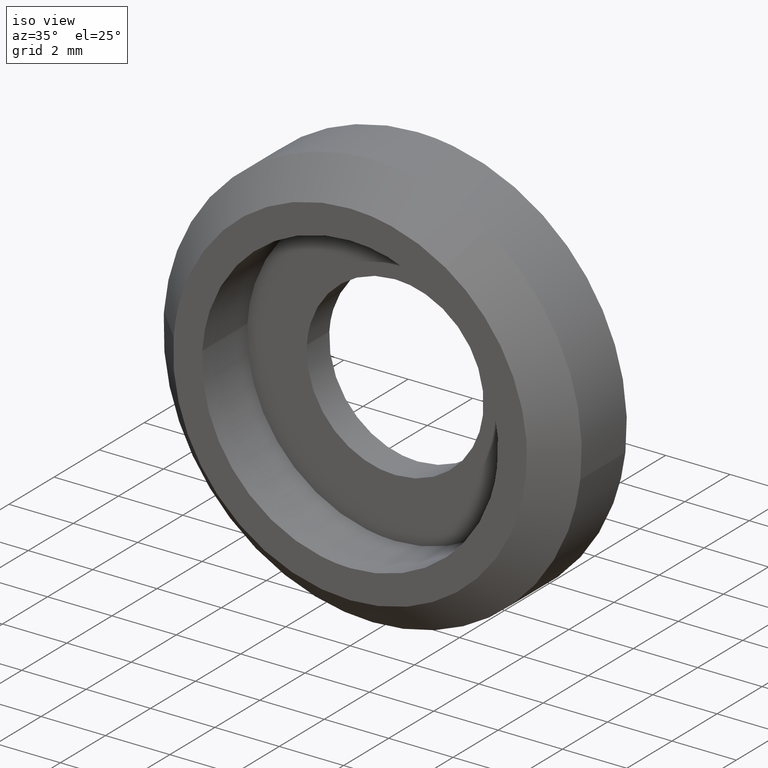
[diagram: clean part render]
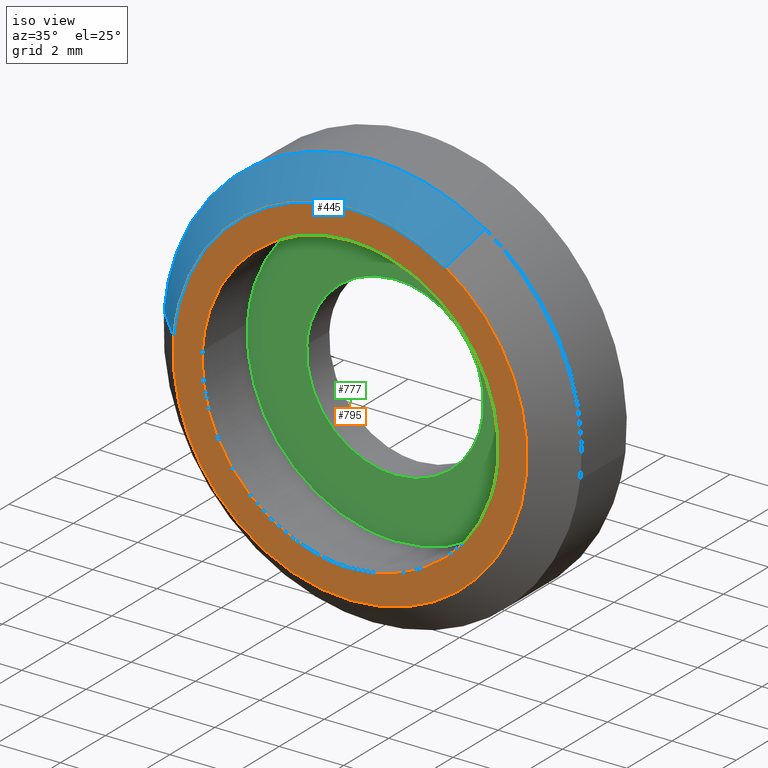
[diagram: same view with three faces highlighted in distinct colors, each labeled with its STEP entity id]
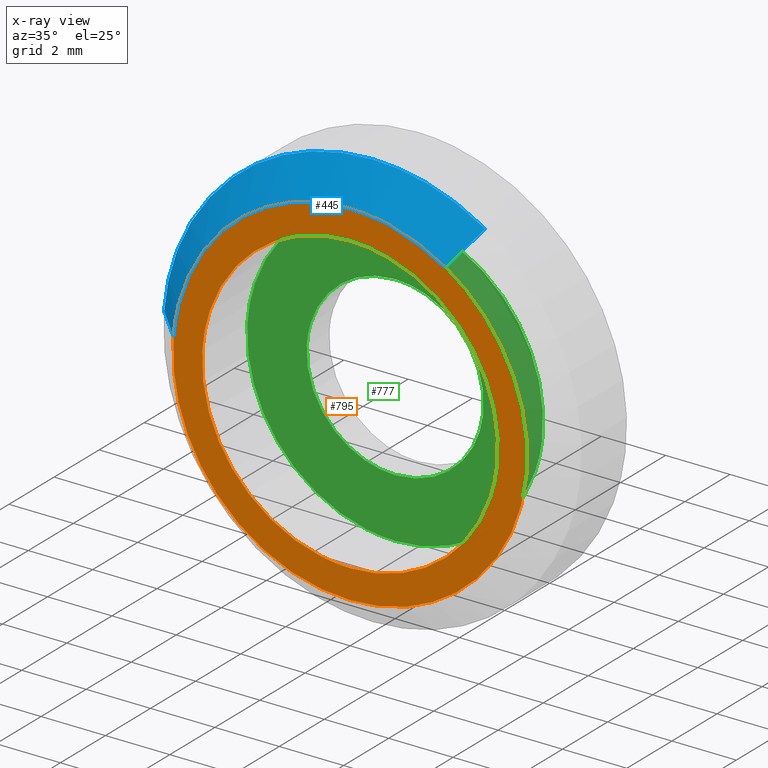
[diagram: x-ray of the same camera — body ghosted, the three highlighted faces saturated]
A machine part, iso view with three faces highlighted in distinct colors.
The next image is the same camera in x-ray (body ghosted, the three faces saturated) — at least one of them is partly hidden behind the body in this view.
Their STEP definitions:

[orange] entity #795 — the highlighted face is a freeform B-spline surface patch.
#85=CARTESIAN_POINT('',(4.567843923526642,-2.0,-0.542956619169509));
#86=VERTEX_POINT('',#85);
#92=CARTESIAN_POINT('',(4.898425E-016,-2.0,4.600000000000000));
#93=VERTEX_POINT('',#92);
#94=CARTESIAN_POINT('',(4.567843923526642,-2.000000000000000,-0.542956619169509));
#95=CARTESIAN_POINT('',(4.600000000000000,-2.000000000000000,-0.272430081052766));
#96=CARTESIAN_POINT('',(4.600000000000001,-2.0,0.0));
#97=CARTESIAN_POINT('',(4.600000000000001,-2.0,4.600000000000000));
#98=CARTESIAN_POINT('',(4.898425E-016,-2.0,4.600000000000000));
#106=(BOUNDED_CURVE()B_SPLINE_CURVE(2,(#94,#95,#96,#97,#98),.UNSPECIFIED.,.F.,.U.)B_SPLINE_CURVE_WITH_KNOTS((3,2,3),(0.229562537171638,0.250000000000000,0.500000000000000),.UNSPECIFIED.)CURVE()GEOMETRIC_REPRESENTATION_ITEM()RATIONAL_B_SPLINE_CURVE((0.956026878956277,0.976056022911283,1.0,0.707106781186547,1.0))REPRESENTATION_ITEM(''));
#107=EDGE_CURVE('',#86,#93,#106,.T.);
#109=CARTESIAN_POINT('',(-4.591420351980636,-2.0,0.280818716251385));
#110=VERTEX_POINT('',#109);
#111=CARTESIAN_POINT('',(4.898425E-016,-2.0,4.600000000000000));
#112=CARTESIAN_POINT('',(-4.327252218730626,-2.0,4.600000000000000));
#113=CARTESIAN_POINT('',(-4.591420351980636,-2.000000000000000,0.280818716251385));
#121=(BOUNDED_CURVE()B_SPLINE_CURVE(2,(#111,#112,#113),.UNSPECIFIED.,.F.,.U.)B_SPLINE_CURVE_WITH_KNOTS((3,3),(0.500000000000000,0.739333133818792),.UNSPECIFIED.)CURVE()GEOMETRIC_REPRESENTATION_ITEM()RATIONAL_B_SPLINE_CURVE((1.0,0.719603792268414,0.976072409395271))REPRESENTATION_ITEM(''));
#122=EDGE_CURVE('',#93,#110,#121,.T.);
#196=CARTESIAN_POINT('',(4.898425E-016,-2.0,-4.600000000000000));
#197=VERTEX_POINT('',#196);
#198=CARTESIAN_POINT('',(-4.591420351980636,-2.000000000000000,0.280818716251385));
#199=CARTESIAN_POINT('',(-4.599999999999999,-2.000000000000000,0.140540421968442));
#200=CARTESIAN_POINT('',(-4.599999999999999,-2.0,0.0));
#201=CARTESIAN_POINT('',(-4.600000000000000,-2.0,-4.600000000000000));
#202=CARTESIAN_POINT('',(4.898425E-016,-2.0,-4.600000000000000));
#210=(BOUNDED_CURVE()B_SPLINE_CURVE(2,(#198,#199,#200,#201,#202),.UNSPECIFIED.,.F.,.U.)B_SPLINE_CURVE_WITH_KNOTS((3,2,3),(0.739333133818792,0.750000000000000,1.0),.UNSPECIFIED.)CURVE()GEOMETRIC_REPRESENTATION_ITEM()RATIONAL_B_SPLINE_CURVE((0.976072409395271,0.987502988918134,1.0,0.707106781186547,1.0))REPRESENTATION_ITEM(''));
#211=EDGE_CURVE('',#110,#197,#210,.T.);
#213=CARTESIAN_POINT('',(4.898425E-016,-2.0,-4.600000000000000));
#214=CARTESIAN_POINT('',(4.085604369074106,-1.999999999999999,-4.600000000000000));
#215=CARTESIAN_POINT('',(4.567843923526642,-2.000000000000000,-0.542956619169509));
#223=(BOUNDED_CURVE()B_SPLINE_CURVE(2,(#213,#214,#215),.UNSPECIFIED.,.F.,.U.)B_SPLINE_CURVE_WITH_KNOTS((3,3),(0.0,0.229562537171638),.UNSPECIFIED.)CURVE()GEOMETRIC_REPRESENTATION_ITEM()RATIONAL_B_SPLINE_CURVE((1.0,0.731050758275264,0.956026878956277))REPRESENTATION_ITEM(''));
#224=EDGE_CURVE('',#197,#86,#223,.T.);
#271=CARTESIAN_POINT('',(2.958179363957607,-1.999999999999788,4.636720268752224));
#272=VERTEX_POINT('',#271);
#278=CARTESIAN_POINT('',(4.898425E-016,-2.0,-5.500000000000000));
#279=VERTEX_POINT('',#278);
#280=CARTESIAN_POINT('',(4.898425E-016,-2.0,-5.500000000000000));
#281=CARTESIAN_POINT('',(5.500000000000001,-2.000000000000000,-5.500000000000001));
#282=CARTESIAN_POINT('',(5.500000000000001,-2.0,0.0));
#283=CARTESIAN_POINT('',(5.500000000000000,-2.000000000000000,3.015065108075712));
#284=CARTESIAN_POINT('',(2.958179363957608,-1.999999999999788,4.636720268752226));
#292=(BOUNDED_CURVE()B_SPLINE_CURVE(2,(#280,#281,#282,#283,#284),.UNSPECIFIED.,.F.,.U.)B_SPLINE_CURVE_WITH_KNOTS((3,2,3),(0.0,0.250000000000000,0.407950112627348),.UNSPECIFIED.)CURVE()GEOMETRIC_REPRESENTATION_ITEM()RATIONAL_B_SPLINE_CURVE((1.0,0.707106781186548,1.0,0.814949932402515,0.863729296954799))REPRESENTATION_ITEM(''));
#293=EDGE_CURVE('',#279,#272,#292,.T.);
#295=CARTESIAN_POINT('',(-5.483045335532477,-1.999999999999305,0.431525026508502));
#296=VERTEX_POINT('',#295);
#297=CARTESIAN_POINT('',(-5.483045335532477,-1.999999999999305,0.431525026508502));
#298=CARTESIAN_POINT('',(-5.499999999999999,-2.000000000000000,0.216095588547506));
#299=CARTESIAN_POINT('',(-5.499999999999999,-2.0,0.0));
#300=CARTESIAN_POINT('',(-5.499999999999999,-2.000000000000000,-5.500000000000001));
#301=CARTESIAN_POINT('',(4.898425E-016,-2.0,-5.500000000000000));
#309=(BOUNDED_CURVE()B_SPLINE_CURVE(2,(#297,#298,#299,#300,#301),.UNSPECIFIED.,.F.,.U.)B_SPLINE_CURVE_WITH_KNOTS((3,2,3),(0.736331300632436,0.750000000000000,1.0),.UNSPECIFIED.)CURVE()GEOMETRIC_REPRESENTATION_ITEM()RATIONAL_B_SPLINE_CURVE((0.969723356171124,0.983986122580963,1.0,0.707106781186548,1.0))REPRESENTATION_ITEM(''));
#310=EDGE_CURVE('',#296,#279,#309,.T.);
#414=CARTESIAN_POINT('',(4.898425E-016,-2.0,5.500000000000000));
#415=VERTEX_POINT('',#414);
#416=CARTESIAN_POINT('',(4.898425E-016,-2.0,5.500000000000000));
#417=CARTESIAN_POINT('',(-5.084147704110269,-2.000000000000000,5.499999999999999));
#418=CARTESIAN_POINT('',(-5.483045335532477,-1.999999999999304,0.431525026508502));
#426=(BOUNDED_CURVE()B_SPLINE_CURVE(2,(#416,#417,#418),.UNSPECIFIED.,.F.,.U.)B_SPLINE_CURVE_WITH_KNOTS((3,3),(0.500000000000000,0.736331300632435),.UNSPECIFIED.)CURVE()GEOMETRIC_REPRESENTATION_ITEM()RATIONAL_B_SPLINE_CURVE((1.0,0.723120658605585,0.969723356171123))REPRESENTATION_ITEM(''));
#427=EDGE_CURVE('',#415,#296,#426,.T.);
#429=CARTESIAN_POINT('',(2.958179363957608,-1.999999999999788,4.636720268752226));
#430=CARTESIAN_POINT('',(1.605054304590299,-2.0,5.500000000000001));
#431=CARTESIAN_POINT('',(4.898425E-016,-2.0,5.500000000000000));
#439=(BOUNDED_CURVE()B_SPLINE_CURVE(2,(#429,#430,#431),.UNSPECIFIED.,.F.,.U.)B_SPLINE_CURVE_WITH_KNOTS((3,3),(0.407950112627348,0.500000000000000),.UNSPECIFIED.)CURVE()GEOMETRIC_REPRESENTATION_ITEM()RATIONAL_B_SPLINE_CURVE((0.863729296954799,0.892156848784032,1.0))REPRESENTATION_ITEM(''));
#440=EDGE_CURVE('',#272,#415,#439,.T.);
#778=CARTESIAN_POINT('',(-6.047750389742101,-2.0,-6.049449978679865));
#779=CARTESIAN_POINT('',(-6.047750389742101,-2.0,6.049450273722857));
#780=CARTESIAN_POINT('',(6.047335264252870,-2.0,-6.049449978679865));
#781=CARTESIAN_POINT('',(6.047335264252870,-2.0,6.049450273722857));
#782=B_SPLINE_SURFACE_WITH_KNOTS('',1,1,((#778,#780),(#779,#781)),.UNSPECIFIED.,.F.,.F.,.U.,(2,2),(2,2),(0.0,12.098900252402720),(0.0,12.095085653994969),.UNSPECIFIED.);
#783=ORIENTED_EDGE('',*,*,#293,.T.);
#784=ORIENTED_EDGE('',*,*,#440,.T.);
#785=ORIENTED_EDGE('',*,*,#427,.T.);
#786=ORIENTED_EDGE('',*,*,#310,.T.);
#787=EDGE_LOOP('',(#783,#784,#785,#786));
#788=FACE_OUTER_BOUND('',#787,.T.);
#789=ORIENTED_EDGE('',*,*,#122,.F.);
#790=ORIENTED_EDGE('',*,*,#107,.F.);
#791=ORIENTED_EDGE('',*,*,#224,.F.);
#792=ORIENTED_EDGE('',*,*,#211,.F.);
#793=EDGE_LOOP('',(#789,#790,#791,#792));
#794=FACE_BOUND('',#793,.T.);
#795=ADVANCED_FACE('',(#788,#794),#782,.F.);

[blue] entity #445 — the highlighted face is a freeform B-spline surface patch.
#254=CARTESIAN_POINT('',(3.496030157401222,-0.999999999999946,5.479760317618087));
#255=VERTEX_POINT('',#254);
#271=CARTESIAN_POINT('',(2.958179363957607,-1.999999999999788,4.636720268752224));
#272=VERTEX_POINT('',#271);
#273=CARTESIAN_POINT('',(2.958179363957607,-1.999999999999788,4.636720268752224));
#274=CARTESIAN_POINT('',(3.496030157401222,-0.999999999999946,5.479760317618087));
#275=QUASI_UNIFORM_CURVE('',1,(#273,#274),.UNSPECIFIED.,.F.,.U.);
#276=EDGE_CURVE('',#272,#255,#275,.T.);
#295=CARTESIAN_POINT('',(-5.483045335532477,-1.999999999999305,0.431525026508502));
#296=VERTEX_POINT('',#295);
#312=CARTESIAN_POINT('',(-6.479962669265479,-0.999999999999622,0.509984122233905));
#313=VERTEX_POINT('',#312);
#314=CARTESIAN_POINT('',(-5.483045335532477,-1.999999999999305,0.431525026508502));
#315=CARTESIAN_POINT('',(-6.479962669265479,-0.999999999999622,0.509984122233905));
#316=QUASI_UNIFORM_CURVE('',1,(#314,#315),.UNSPECIFIED.,.F.,.U.);
#317=EDGE_CURVE('',#296,#313,#316,.T.);
#367=CARTESIAN_POINT('',(-5.458122402188872,-2.025000000000000,0.429563549109954));
#368=CARTESIAN_POINT('',(-5.028558853078918,-2.025000000000000,5.887685951298828));
#369=CARTESIAN_POINT('',(0.429563549109955,-2.025000000000000,5.458122402188873));
#370=CARTESIAN_POINT('',(1.792321263180675,-2.024999999999999,5.350871044103091));
#371=CARTESIAN_POINT('',(2.944733094117965,-2.025000000000000,4.615644267532583));
#372=CARTESIAN_POINT('',(-6.505508675942239,-0.974375000000000,0.511994636559022));
#373=CARTESIAN_POINT('',(-5.993514039383216,-0.974375000000000,7.017503312501262));
#374=CARTESIAN_POINT('',(0.511994636559022,-0.974375000000000,6.505508675942240));
#375=CARTESIAN_POINT('',(2.136258711058153,-0.974375000000000,6.377676320945247));
#376=CARTESIAN_POINT('',(3.509812583982383,-0.974375000000000,5.501363218870742));
#384=(BOUNDED_SURFACE()B_SPLINE_SURFACE(2,1,((#367,#372),(#368,#373),(#369,#374),(#370,#375),(#371,#376)),.UNSPECIFIED.,.F.,.F.,.U.)B_SPLINE_SURFACE_WITH_KNOTS((3,2,3),(2,2),(0.0,10.812009511843710,14.271852555633700),(0.0,1.0),.UNSPECIFIED.)GEOMETRIC_REPRESENTATION_ITEM()RATIONAL_B_SPLINE_SURFACE(((1.0,1.0),(0.707106781186548,0.707106781186548),(1.0,1.0),(0.906274169979695,0.906274169979695),(0.872532871172386,0.872532871172386)))REPRESENTATION_ITEM('')SURFACE());
#385=CARTESIAN_POINT('',(4.898425E-016,-1.0,6.500000000000000));
#386=VERTEX_POINT('',#385);
#387=CARTESIAN_POINT('',(3.496030157401223,-0.999999999999946,5.479760317618088));
#388=CARTESIAN_POINT('',(1.896882359966342,-1.0,6.500000000000000));
#389=CARTESIAN_POINT('',(4.898425E-016,-1.0,6.500000000000000));
#397=(BOUNDED_CURVE()B_SPLINE_CURVE(2,(#387,#388,#389),.UNSPECIFIED.,.F.,.U.)B_SPLINE_CURVE_WITH_KNOTS((3,3),(0.407950112627522,0.500000000000000),.UNSPECIFIED.)CURVE()GEOMETRIC_REPRESENTATION_ITEM()RATIONAL_B_SPLINE_CURVE((0.863729296954906,0.892156848784236,1.0))REPRESENTATION_ITEM(''));
#398=EDGE_CURVE('',#255,#386,#397,.T.);
#399=ORIENTED_EDGE('',*,*,#398,.T.);
#400=CARTESIAN_POINT('',(4.898425E-016,-1.0,6.500000000000000));
#401=CARTESIAN_POINT('',(-6.008538195773006,-1.0,6.500000000000000));
#402=CARTESIAN_POINT('',(-6.479962669265479,-0.999999999999622,0.509984122233905));
#410=(BOUNDED_CURVE()B_SPLINE_CURVE(2,(#400,#401,#402),.UNSPECIFIED.,.F.,.U.)B_SPLINE_CURVE_WITH_KNOTS((3,3),(0.500000000000000,0.736331300632615),.UNSPECIFIED.)CURVE()GEOMETRIC_REPRESENTATION_ITEM()RATIONAL_B_SPLINE_CURVE((1.0,0.723120658605375,0.969723356171499))REPRESENTATION_ITEM(''));
#411=EDGE_CURVE('',#386,#313,#410,.T.);
#412=ORIENTED_EDGE('',*,*,#411,.T.);
#413=ORIENTED_EDGE('',*,*,#317,.F.);
#414=CARTESIAN_POINT('',(4.898425E-016,-2.0,5.500000000000000));
#415=VERTEX_POINT('',#414);
#416=CARTESIAN_POINT('',(4.898425E-016,-2.0,5.500000000000000));
#417=CARTESIAN_POINT('',(-5.084147704110269,-2.000000000000000,5.499999999999999));
#418=CARTESIAN_POINT('',(-5.483045335532477,-1.999999999999304,0.431525026508502));
#426=(BOUNDED_CURVE()B_SPLINE_CURVE(2,(#416,#417,#418),.UNSPECIFIED.,.F.,.U.)B_SPLINE_CURVE_WITH_KNOTS((3,3),(0.500000000000000,0.736331300632435),.UNSPECIFIED.)CURVE()GEOMETRIC_REPRESENTATION_ITEM()RATIONAL_B_SPLINE_CURVE((1.0,0.723120658605585,0.969723356171123))REPRESENTATION_ITEM(''));
#427=EDGE_CURVE('',#415,#296,#426,.T.);
#428=ORIENTED_EDGE('',*,*,#427,.F.);
#429=CARTESIAN_POINT('',(2.958179363957608,-1.999999999999788,4.636720268752226));
#430=CARTESIAN_POINT('',(1.605054304590299,-2.0,5.500000000000001));
#431=CARTESIAN_POINT('',(4.898425E-016,-2.0,5.500000000000000));
#439=(BOUNDED_CURVE()B_SPLINE_CURVE(2,(#429,#430,#431),.UNSPECIFIED.,.F.,.U.)B_SPLINE_CURVE_WITH_KNOTS((3,3),(0.407950112627348,0.500000000000000),.UNSPECIFIED.)CURVE()GEOMETRIC_REPRESENTATION_ITEM()RATIONAL_B_SPLINE_CURVE((0.863729296954799,0.892156848784032,1.0))REPRESENTATION_ITEM(''));
#440=EDGE_CURVE('',#272,#415,#439,.T.);
#441=ORIENTED_EDGE('',*,*,#440,.F.);
#442=ORIENTED_EDGE('',*,*,#276,.T.);
#443=EDGE_LOOP('',(#399,#412,#413,#428,#441,#442));
#444=FACE_OUTER_BOUND('',#443,.T.);
#445=ADVANCED_FACE('',(#444),#384,.T.);

[green] entity #777 — the highlighted face is a freeform B-spline surface patch.
#66=CARTESIAN_POINT('',(4.567843924772339,-3.194357E-015,-0.542956608689565));
#67=VERTEX_POINT('',#66);
#68=CARTESIAN_POINT('',(4.898425E-016,0.0,4.600000000000000));
#69=VERTEX_POINT('',#68);
#70=CARTESIAN_POINT('',(4.567843924772339,-3.194357E-015,-0.542956608689565));
#71=CARTESIAN_POINT('',(4.600000000000001,0.0,-0.272430070462030));
#72=CARTESIAN_POINT('',(4.600000000000001,0.0,0.0));
#73=CARTESIAN_POINT('',(4.600000000000001,0.0,4.600000000000000));
#74=CARTESIAN_POINT('',(4.898425E-016,0.0,4.600000000000000));
#82=(BOUNDED_CURVE()B_SPLINE_CURVE(2,(#70,#71,#72,#73,#74),.UNSPECIFIED.,.F.,.U.)B_SPLINE_CURVE_WITH_KNOTS((3,2,3),(0.229562537947122,0.250000000000000,0.500000000000000),.UNSPECIFIED.)CURVE()GEOMETRIC_REPRESENTATION_ITEM()RATIONAL_B_SPLINE_CURVE((0.956026880476258,0.976056023819819,1.0,0.707106781186547,1.0))REPRESENTATION_ITEM(''));
#83=EDGE_CURVE('',#67,#69,#82,.T.);
#124=CARTESIAN_POINT('',(-4.591420355385287,-1.392636E-014,0.280818660584011));
#125=VERTEX_POINT('',#124);
#131=CARTESIAN_POINT('',(4.898425E-016,0.0,4.600000000000000));
#132=CARTESIAN_POINT('',(-4.327252271293201,0.0,4.599999999999999));
#133=CARTESIAN_POINT('',(-4.591420355385287,-1.392636E-014,0.280818660584011));
#141=(BOUNDED_CURVE()B_SPLINE_CURVE(2,(#131,#132,#133),.UNSPECIFIED.,.F.,.U.)B_SPLINE_CURVE_WITH_KNOTS((3,3),(0.500000000000000,0.739333135910787),.UNSPECIFIED.)CURVE()GEOMETRIC_REPRESENTATION_ITEM()RATIONAL_B_SPLINE_CURVE((1.0,0.719603789817489,0.976072413878821))REPRESENTATION_ITEM(''));
#142=EDGE_CURVE('',#69,#125,#141,.T.);
#165=CARTESIAN_POINT('',(4.898425E-016,0.0,-4.600000000000000));
#166=VERTEX_POINT('',#165);
#167=CARTESIAN_POINT('',(4.898425E-016,0.0,-4.600000000000000));
#168=CARTESIAN_POINT('',(4.085604387953177,0.0,-4.599999999999999));
#169=CARTESIAN_POINT('',(4.567843924772339,-3.194357E-015,-0.542956608689565));
#177=(BOUNDED_CURVE()B_SPLINE_CURVE(2,(#167,#168,#169),.UNSPECIFIED.,.F.,.U.)B_SPLINE_CURVE_WITH_KNOTS((3,3),(0.0,0.229562537947122),.UNSPECIFIED.)CURVE()GEOMETRIC_REPRESENTATION_ITEM()RATIONAL_B_SPLINE_CURVE((1.0,0.731050757366728,0.956026880476258))REPRESENTATION_ITEM(''));
#178=EDGE_CURVE('',#166,#67,#177,.T.);
#180=CARTESIAN_POINT('',(-4.591420355385287,-1.392636E-014,0.280818660584011));
#181=CARTESIAN_POINT('',(-4.599999999999999,0.0,0.140540394056717));
#182=CARTESIAN_POINT('',(-4.599999999999999,0.0,0.0));
#183=CARTESIAN_POINT('',(-4.600000000000000,0.0,-4.600000000000000));
#184=CARTESIAN_POINT('',(4.898425E-016,0.0,-4.600000000000000));
#192=(BOUNDED_CURVE()B_SPLINE_CURVE(2,(#180,#181,#182,#183,#184),.UNSPECIFIED.,.F.,.U.)B_SPLINE_CURVE_WITH_KNOTS((3,2,3),(0.739333135910787,0.750000000000000,1.0),.UNSPECIFIED.)CURVE()GEOMETRIC_REPRESENTATION_ITEM()RATIONAL_B_SPLINE_CURVE((0.976072413878821,0.987502991369059,1.0,0.707106781186547,1.0))REPRESENTATION_ITEM(''));
#193=EDGE_CURVE('',#125,#166,#192,.T.);
#596=CARTESIAN_POINT('',(2.730776319682042,-1.124946E-014,-0.324593117398889));
#597=VERTEX_POINT('',#596);
#598=CARTESIAN_POINT('',(4.898425E-016,0.0,2.750000000000000));
#599=VERTEX_POINT('',#598);
#600=CARTESIAN_POINT('',(2.730776319682042,-1.124946E-014,-0.324593117398889));
#601=CARTESIAN_POINT('',(2.750000000000000,0.0,-0.162865809655731));
#602=CARTESIAN_POINT('',(2.750000000000000,0.0,0.0));
#603=CARTESIAN_POINT('',(2.750000000000000,0.0,2.750000000000000));
#604=CARTESIAN_POINT('',(4.898425E-016,0.0,2.750000000000000));
#612=(BOUNDED_CURVE()B_SPLINE_CURVE(2,(#600,#601,#602,#603,#604),.UNSPECIFIED.,.F.,.U.)B_SPLINE_CURVE_WITH_KNOTS((3,2,3),(0.229562537131132,0.250000000000000,0.500000000000000),.UNSPECIFIED.)CURVE()GEOMETRIC_REPRESENTATION_ITEM()RATIONAL_B_SPLINE_CURVE((0.956026878876884,0.976056022863828,1.0,0.707106781186548,1.0))REPRESENTATION_ITEM(''));
#613=EDGE_CURVE('',#597,#599,#612,.T.);
#615=CARTESIAN_POINT('',(-2.744870927625979,6.940802E-014,0.167879691026804));
#616=VERTEX_POINT('',#615);
#617=CARTESIAN_POINT('',(4.898425E-016,0.0,2.750000000000000));
#618=CARTESIAN_POINT('',(-2.586945265149691,0.0,2.750000000000001));
#619=CARTESIAN_POINT('',(-2.744870927625979,6.940802E-014,0.167879691026804));
#627=(BOUNDED_CURVE()B_SPLINE_CURVE(2,(#617,#618,#619),.UNSPECIFIED.,.F.,.U.)B_SPLINE_CURVE_WITH_KNOTS((3,3),(0.500000000000000,0.739333200656587),.UNSPECIFIED.)CURVE()GEOMETRIC_REPRESENTATION_ITEM()RATIONAL_B_SPLINE_CURVE((1.0,0.719603713963066,0.976072552641646))REPRESENTATION_ITEM(''));
#628=EDGE_CURVE('',#599,#616,#627,.T.);
#695=CARTESIAN_POINT('',(4.898425E-016,0.0,-2.750000000000000));
#696=VERTEX_POINT('',#695);
#697=CARTESIAN_POINT('',(4.898425E-016,0.0,-2.750000000000000));
#698=CARTESIAN_POINT('',(2.442480872226521,0.0,-2.749999999999999));
#699=CARTESIAN_POINT('',(2.730776319682042,-1.124946E-014,-0.324593117398889));
#707=(BOUNDED_CURVE()B_SPLINE_CURVE(2,(#697,#698,#699),.UNSPECIFIED.,.F.,.U.)B_SPLINE_CURVE_WITH_KNOTS((3,3),(0.0,0.229562537131132),.UNSPECIFIED.)CURVE()GEOMETRIC_REPRESENTATION_ITEM()RATIONAL_B_SPLINE_CURVE((1.0,0.731050758322720,0.956026878876884))REPRESENTATION_ITEM(''));
#708=EDGE_CURVE('',#696,#597,#707,.T.);
#742=CARTESIAN_POINT('',(-2.744870927625979,6.940802E-014,0.167879691026804));
#743=CARTESIAN_POINT('',(-2.750000000000000,0.0,0.084018197407122));
#744=CARTESIAN_POINT('',(-2.750000000000000,0.0,0.0));
#745=CARTESIAN_POINT('',(-2.749999999999999,0.0,-2.750000000000000));
#746=CARTESIAN_POINT('',(4.898425E-016,0.0,-2.750000000000000));
#754=(BOUNDED_CURVE()B_SPLINE_CURVE(2,(#742,#743,#744,#745,#746),.UNSPECIFIED.,.F.,.U.)B_SPLINE_CURVE_WITH_KNOTS((3,2,3),(0.739333200656587,0.750000000000000,1.0),.UNSPECIFIED.)CURVE()GEOMETRIC_REPRESENTATION_ITEM()RATIONAL_B_SPLINE_CURVE((0.976072552641646,0.987503067223482,1.0,0.707106781186548,1.0))REPRESENTATION_ITEM(''));
#755=EDGE_CURVE('',#616,#696,#754,.T.);
#760=CARTESIAN_POINT('',(-5.059428022257322,0.0,-5.059539895805596));
#761=CARTESIAN_POINT('',(-5.059428022257322,0.0,5.059540224823236));
#762=CARTESIAN_POINT('',(5.059456317774290,0.0,-5.059539895805596));
#763=CARTESIAN_POINT('',(5.059456317774290,0.0,5.059540224823236));
#764=B_SPLINE_SURFACE_WITH_KNOTS('',1,1,((#760,#762),(#761,#763)),.UNSPECIFIED.,.F.,.F.,.U.,(2,2),(2,2),(0.0,10.119080120628830),(0.0,10.118884340031610),.UNSPECIFIED.);
#765=ORIENTED_EDGE('',*,*,#178,.T.);
#766=ORIENTED_EDGE('',*,*,#83,.T.);
#767=ORIENTED_EDGE('',*,*,#142,.T.);
#768=ORIENTED_EDGE('',*,*,#193,.T.);
#769=EDGE_LOOP('',(#765,#766,#767,#768));
#770=FACE_OUTER_BOUND('',#769,.T.);
#771=ORIENTED_EDGE('',*,*,#628,.F.);
#772=ORIENTED_EDGE('',*,*,#613,.F.);
#773=ORIENTED_EDGE('',*,*,#708,.F.);
#774=ORIENTED_EDGE('',*,*,#755,.F.);
#775=EDGE_LOOP('',(#771,#772,#773,#774));
#776=FACE_BOUND('',#775,.T.);
#777=ADVANCED_FACE('',(#770,#776),#764,.F.);